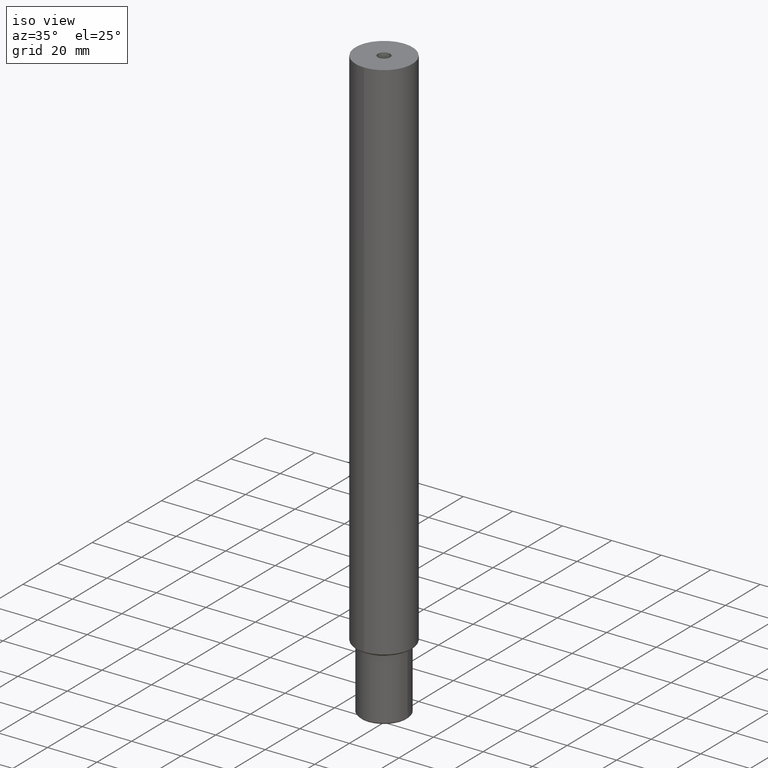
[diagram: clean part render]
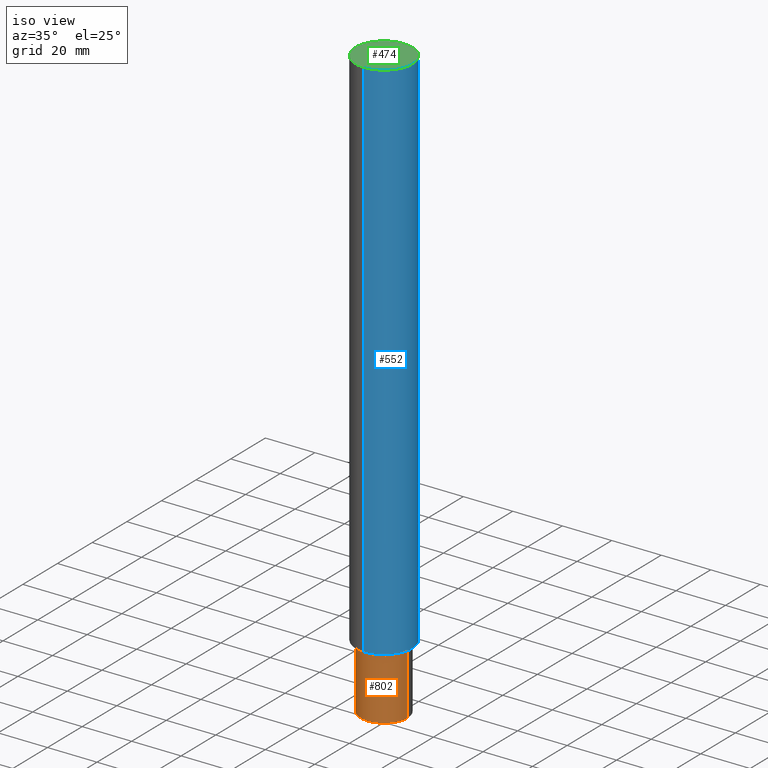
[diagram: same view with three faces highlighted in distinct colors, each labeled with its STEP entity id]
A machine part, iso view with three faces highlighted in distinct colors.
Their STEP definitions:

[orange] entity #802 — the highlighted cylindrical surface (edge-blend (fillet) strip) has radius 9.5 mm, axis along (-0, -0, -1).
#470=VERTEX_POINT('NONE',#1184);
#566=VERTEX_POINT('NONE',#1293);
#578=EDGE_CURVE('NONE',#566,#684,#1306,.T.);
#588=EDGE_CURVE('NONE',#684,#998,#1316,.T.);
#602=EDGE_CURVE('NONE',#998,#752,#1331,.T.);
#608=VERTEX_POINT('NONE',#1338);
#660=EDGE_CURVE('NONE',#608,#470,#1391,.F.);
#684=VERTEX_POINT('NONE',#1420);
#752=VERTEX_POINT('NONE',#1499);
#768=EDGE_CURVE('NONE',#566,#608,#1516,.F.);
#802=ADVANCED_FACE('NONE',(#1552),#1553,.T.);
#818=EDGE_CURVE('NONE',#470,#752,#1570,.T.);
#998=VERTEX_POINT('NONE',#1770);
#1184=CARTESIAN_POINT('',(-9.5,-2.37853876557901E-014,25.0));
#1293=CARTESIAN_POINT('',(9.5,2.49487636919214E-014,25.0));
#1306=LINE('',#2233,#2234);
#1316=CIRCLE('',#2250,9.49999999999999);
#1331=CIRCLE('',#2270,9.49999999999999);
#1338=CARTESIAN_POINT('',(2.38802081301236E-015,-9.5,25.0));
#1391=CIRCLE('',#2358,9.49999999999999);
#1420=CARTESIAN_POINT('',(9.49999999999999,2.49487636919214E-014,0.499999999999988));
#1499=CARTESIAN_POINT('',(-9.49999999999999,-2.37853876557901E-014,0.499999999999988));
#1516=CIRCLE('',#2605,9.49999999999999);
#1552=FACE_OUTER_BOUND('',#2712,.T.);
#1553=CYLINDRICAL_SURFACE('',#2713,9.49999999999999);
#1570=LINE('',#2770,#2771);
#1770=CARTESIAN_POINT('',(2.26220116196589E-014,-9.49999999999999,0.499999999999988));
#2233=CARTESIAN_POINT('',(9.49999999999999,2.49487636919214E-014,-3.76014803892497));
#2234=VECTOR('',#3538,1000.0);
#2250=AXIS2_PLACEMENT_3D('',#3544,#3545,#3546);
#2270=AXIS2_PLACEMENT_3D('',#3563,#3564,#3565);
#2358=AXIS2_PLACEMENT_3D('',#3615,#3616,#3617);
#2605=AXIS2_PLACEMENT_3D('',#3812,#3813,#3814);
#2712=EDGE_LOOP('',(#3850,#3851,#3852,#3853,#3854,#3855));
#2713=AXIS2_PLACEMENT_3D('',#3856,#3857,#3858);
#2770=CARTESIAN_POINT('',(-9.49999999999999,-2.37853876557901E-014,-3.76014803892496));
#2771=VECTOR('',#3875,1000.0);
#3538=DIRECTION('',(-1.22460635382238E-016,-3.0660775633062E-031,-1.0));
#3544=CARTESIAN_POINT('',(5.83435169546816E-016,1.46076122944133E-030,0.499999999999986));
#3545=DIRECTION('',(-1.3695185336659E-016,-3.42889781316134E-031,-1.0));
#3546=DIRECTION('',(-1.0,-2.50372501639896E-015,1.3695185336659E-016));
#3563=CARTESIAN_POINT('',(5.83435169546816E-016,1.46076122944133E-030,0.499999999999986));
#3564=DIRECTION('',(-1.3695185336659E-016,-3.42889781316134E-031,-1.0));
#3565=DIRECTION('',(-1.0,-2.50372501639896E-015,1.3695185336659E-016));
#3615=CARTESIAN_POINT('',(6.3732706567823E-031,-5.20417042793042E-015,25.0));
#3616=DIRECTION('',(1.3695185336659E-016,3.42889781316134E-031,1.0));
#3617=DIRECTION('',(-1.0,-2.50372501639896E-015,1.3695185336659E-016));
#3812=CARTESIAN_POINT('',(6.3732706567823E-031,-5.20417042793042E-015,25.0));
#3813=DIRECTION('',(1.3695185336659E-016,3.42889781316134E-031,1.0));
#3814=DIRECTION('',(-1.0,-2.50372501639896E-015,1.3695185336659E-016));
#3850=ORIENTED_EDGE('',*,*,#578,.F.);
#3851=ORIENTED_EDGE('',*,*,#768,.T.);
#3852=ORIENTED_EDGE('',*,*,#660,.T.);
#3853=ORIENTED_EDGE('',*,*,#818,.T.);
#3854=ORIENTED_EDGE('',*,*,#602,.F.);
#3855=ORIENTED_EDGE('',*,*,#588,.F.);
#3856=CARTESIAN_POINT('',(0.0,0.0,-3.76014803892497));
#3857=DIRECTION('',(-1.3695185336659E-016,-3.42889781316134E-031,-1.0));
#3858=DIRECTION('',(-1.0,-2.50372501639896E-015,1.3695185336659E-016));
#3875=DIRECTION('',(-1.22460635382238E-016,-3.0660775633062E-031,-1.0));

[blue] entity #552 — the highlighted cylindrical surface (edge-blend (fillet) strip) has radius 11.5 mm, axis along (-0, 0, -1).
#428=EDGE_CURVE('NONE',#794,#892,#1138,.T.);
#524=VERTEX_POINT('NONE',#1245);
#552=ADVANCED_FACE('NONE',(#1276),#1277,.T.);
#584=VERTEX_POINT('NONE',#1312);
#794=VERTEX_POINT('NONE',#1543);
#862=EDGE_CURVE('NONE',#892,#584,#1620,.T.);
#892=VERTEX_POINT('NONE',#1652);
#928=EDGE_CURVE('NONE',#524,#584,#1692,.T.);
#1056=EDGE_CURVE('NONE',#794,#524,#1835,.T.);
#1138=LINE('',#1923,#1924);
#1245=CARTESIAN_POINT('',(2.81664112591521E-015,-11.5000000000001,240.0));
#1276=FACE_OUTER_BOUND('',#2195,.T.);
#1277=CYLINDRICAL_SURFACE('',#2196,11.5);
#1312=CARTESIAN_POINT('',(2.81664112591519E-015,-11.5,26.5));
#1543=CARTESIAN_POINT('',(-1.40834381901945E-015,11.5,240.0));
#1620=CIRCLE('',#2889,11.5);
#1652=CARTESIAN_POINT('',(-1.40834381901946E-015,11.5,26.5));
#1692=LINE('',#2995,#2996);
#1835=CIRCLE('',#3287,11.5);
#1923=CARTESIAN_POINT('',(-1.40834381901946E-015,11.5,2.64829834046847E-015));
#1924=VECTOR('',#3356,1000.0);
#2195=EDGE_LOOP('',(#3493,#3494,#3495,#3496));
#2196=AXIS2_PLACEMENT_3D('',#3497,#3498,#3499);
#2889=AXIS2_PLACEMENT_3D('',#3938,#3939,#3940);
#2995=CARTESIAN_POINT('',(2.81664112591519E-015,-11.5,-2.64829834046847E-015));
#2996=VECTOR('',#4015,1000.0);
#3287=AXIS2_PLACEMENT_3D('',#4191,#4192,#4193);
#3356=DIRECTION('',(-2.82020007464518E-032,2.30286812214649E-016,-1.0));
#3493=ORIENTED_EDGE('',*,*,#1056,.T.);
#3494=ORIENTED_EDGE('',*,*,#928,.T.);
#3495=ORIENTED_EDGE('',*,*,#862,.F.);
#3496=ORIENTED_EDGE('',*,*,#428,.F.);
#3497=CARTESIAN_POINT('',(0.0,0.0,0.0));
#3498=DIRECTION('',(-2.82020007464518E-032,2.30286812214649E-016,-1.0));
#3499=DIRECTION('',(-1.22464679914735E-016,1.0,2.30286812214649E-016));
#3938=CARTESIAN_POINT('',(7.47353019780972E-031,-6.10260052368821E-015,26.5));
#3939=DIRECTION('',(-2.82020007464518E-032,2.30286812214649E-016,-1.0));
#3940=DIRECTION('',(-1.22464679914735E-016,1.0,2.30286812214649E-016));
#4015=DIRECTION('',(-2.82020007464518E-032,2.30286812214649E-016,-1.0));
#4191=CARTESIAN_POINT('',(6.76848017914843E-030,-5.52688349315158E-014,240.0));
#4192=DIRECTION('',(-2.82020007464518E-032,2.30286812214649E-016,-1.0));
#4193=DIRECTION('',(-1.22464679914735E-016,1.0,2.30286812214649E-016));

[green] entity #474 — the highlighted planar face has unit normal (0, -0, 1).
#472=VERTEX_POINT('NONE',#1186);
#474=ADVANCED_FACE('NONE',(#1188,#1189),#1190,.T.);
#490=EDGE_CURVE('NONE',#822,#472,#1208,.F.);
#524=VERTEX_POINT('NONE',#1245);
#664=EDGE_CURVE('NONE',#524,#794,#1395,.F.);
#794=VERTEX_POINT('NONE',#1543);
#822=VERTEX_POINT('NONE',#1574);
#1040=EDGE_CURVE('NONE',#472,#822,#1817,.T.);
#1056=EDGE_CURVE('NONE',#794,#524,#1835,.T.);
#1186=CARTESIAN_POINT('',(3.06161699786845E-016,-2.50000000000006,240.0));
#1188=FACE_OUTER_BOUND('',#2037,.T.);
#1189=FACE_BOUND('',#2038,.T.);
#1190=PLANE('',#2039);
#1208=CIRCLE('',#2071,2.5);
#1245=CARTESIAN_POINT('',(2.81664112591521E-015,-11.5000000000001,240.0));
#1395=CIRCLE('',#2367,11.5);
#1543=CARTESIAN_POINT('',(-1.40834381901945E-015,11.5,240.0));
#1574=CARTESIAN_POINT('',(-1.01113312372449E-020,2.49999999999994,240.0));
#1817=CIRCLE('',#3263,2.5);
#1835=CIRCLE('',#3287,11.5);
#2037=EDGE_LOOP('',(#3398,#3399));
#2038=EDGE_LOOP('',(#3400,#3401));
#2039=AXIS2_PLACEMENT_3D('',#3402,#3403,#3404);
#2071=AXIS2_PLACEMENT_3D('',#3421,#3422,#3423);
#2367=AXIS2_PLACEMENT_3D('',#3618,#3619,#3620);
#3263=AXIS2_PLACEMENT_3D('',#4166,#4167,#4168);
#3287=AXIS2_PLACEMENT_3D('',#4191,#4192,#4193);
#3398=ORIENTED_EDGE('',*,*,#1056,.F.);
#3399=ORIENTED_EDGE('',*,*,#664,.F.);
#3400=ORIENTED_EDGE('',*,*,#1040,.F.);
#3401=ORIENTED_EDGE('',*,*,#490,.F.);
#3402=CARTESIAN_POINT('',(-1.40834381901945E-015,11.5,240.0));
#3403=DIRECTION('',(2.82020007464518E-032,-2.30286812214649E-016,1.0));
#3404=DIRECTION('',(-1.22464679914735E-016,1.0,2.30286812214649E-016));
#3421=CARTESIAN_POINT('',(6.76848017914842E-030,-5.52688349315158E-014,240.0));
#3422=DIRECTION('',(-2.82020007464518E-032,2.30286812214649E-016,-1.0));
#3423=DIRECTION('',(1.22464679914735E-016,-1.0,-2.30286812214649E-016));
#3618=CARTESIAN_POINT('',(6.76848017914843E-030,-5.52688349315158E-014,240.0));
#3619=DIRECTION('',(2.82020007464518E-032,-2.30286812214649E-016,1.0));
#3620=DIRECTION('',(-1.22464679914735E-016,1.0,2.30286812214649E-016));
#4166=CARTESIAN_POINT('',(6.76848017914842E-030,-5.52688349315158E-014,240.0));
#4167=DIRECTION('',(2.82020007464518E-032,-2.30286812214649E-016,1.0));
#4168=DIRECTION('',(1.22464679914735E-016,-1.0,-2.30286812214649E-016));
#4191=CARTESIAN_POINT('',(6.76848017914843E-030,-5.52688349315158E-014,240.0));
#4192=DIRECTION('',(-2.82020007464518E-032,2.30286812214649E-016,-1.0));
#4193=DIRECTION('',(-1.22464679914735E-016,1.0,2.30286812214649E-016));